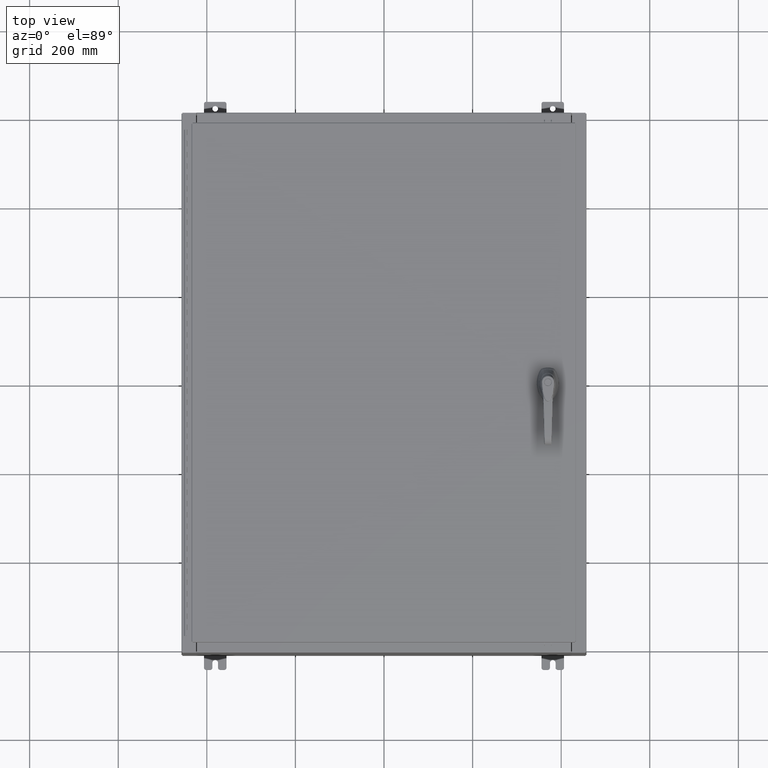
[diagram: clean part render]
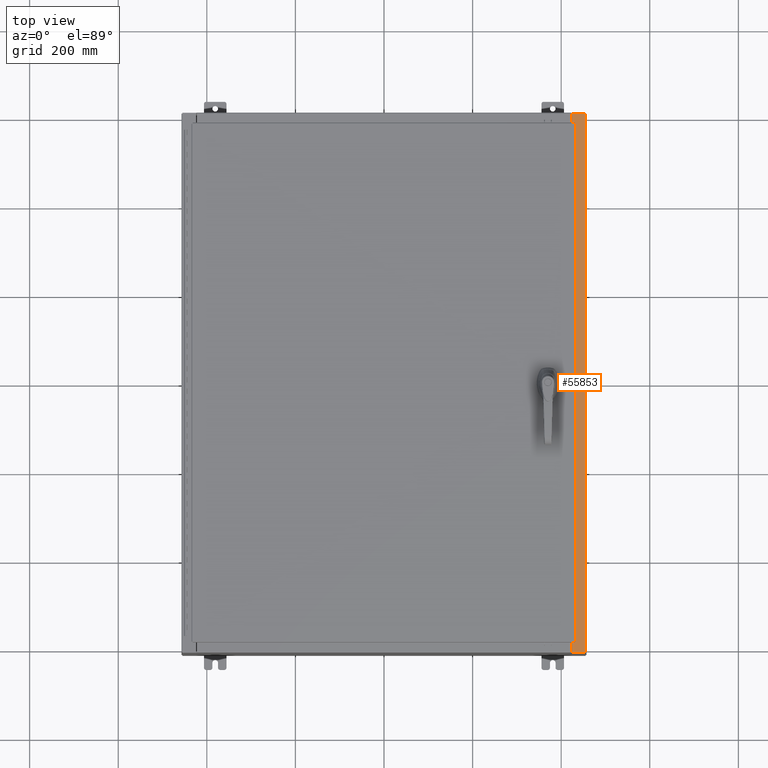
[diagram: same view with one face highlighted and labeled with its STEP entity id]
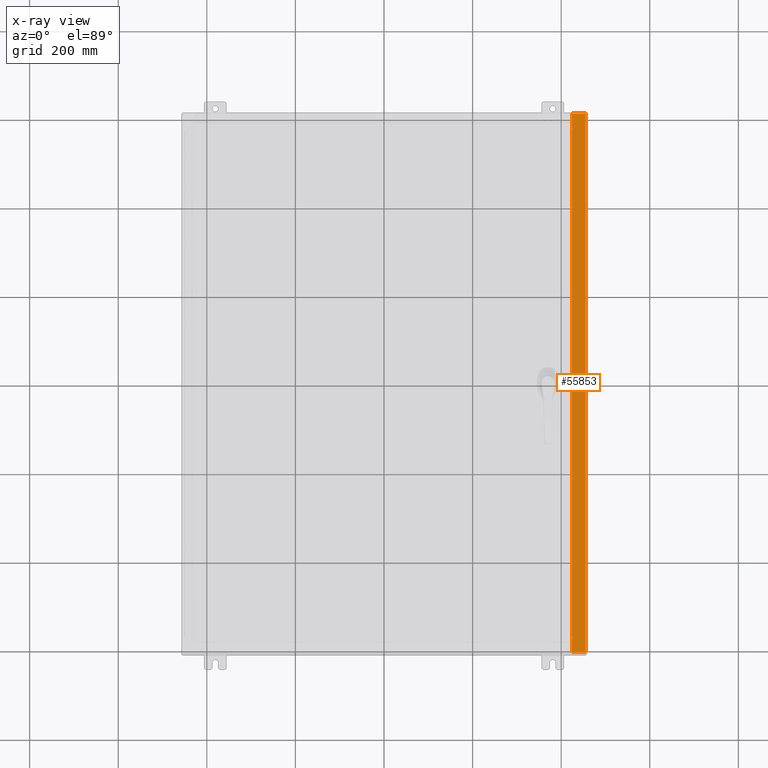
[diagram: x-ray of the same camera — body ghosted, the highlighted face saturated]
A machine part, top view. The second image highlights one B-rep face of the part: STEP entity #55853.
The next image is the same camera in x-ray: the body ghosted, the highlighted face saturated — about 0% of this face is hidden behind the body in this view.
In plain terms, the highlighted planar face has unit normal (-0, 0, -1).
Its self-contained STEP definition (entity closure, byte-faithful):
#2080 = VERTEX_POINT ( 'NONE', #127834 ) ;
#2927 = CARTESIAN_POINT ( 'NONE',  ( 16.71270000000005100, -22.59374999999998900, 15.92530000000000900 ) ) ;
#6597 = DIRECTION ( 'NONE',  ( -7.132762385546384700E-015, 0.0000000000000000000, -1.000000000000000000 ) ) ;
#7098 = ORIENTED_EDGE ( 'NONE', *, *, #40957, .F. ) ;
#7381 = VECTOR ( 'NONE', #115423, 39.37007874015748100 ) ;
#7962 = CARTESIAN_POINT ( 'NONE',  ( 16.71270000000005100, 22.59374999999997200, 15.92530000000000900 ) ) ;
#9690 = FACE_OUTER_BOUND ( 'NONE', #44326, .T. ) ;
#9836 = LINE ( 'NONE', #34510, #115670 ) ;
#10373 = AXIS2_PLACEMENT_3D ( 'NONE', #79350, #17940, #89675 ) ;
#10970 = ORIENTED_EDGE ( 'NONE', *, *, #29927, .F. ) ;
#11438 = EDGE_CURVE ( 'NONE', #120298, #39729, #105476, .T. ) ;
#11815 = CARTESIAN_POINT ( 'NONE',  ( 17.91230000000005200, -23.92529999999998900, 15.92530000000000000 ) ) ;
#12558 = CARTESIAN_POINT ( 'NONE',  ( 16.69970000000005000, 23.92529999999998200, 15.92530000000000500 ) ) ;
#13333 = VECTOR ( 'NONE', #24407, 39.37007874015748100 ) ;
#13379 = EDGE_CURVE ( 'NONE', #25020, #120432, #61890, .T. ) ;
#13850 = ORIENTED_EDGE ( 'NONE', *, *, #21522, .T. ) ;
#16230 = CARTESIAN_POINT ( 'NONE',  ( 16.75005000000005100, -22.59374999999998900, 15.92530000000000900 ) ) ;
#17940 = DIRECTION ( 'NONE',  ( 7.132762385546384700E-015, 0.0000000000000000000, 1.000000000000000000 ) ) ;
#18461 = CIRCLE ( 'NONE', #10373, 0.01867499999999949400 ) ;
#21522 = EDGE_CURVE ( 'NONE', #90543, #92232, #123317, .T. ) ;
#23652 = VECTOR ( 'NONE', #68714, 39.37007874015748100 ) ;
#24407 = DIRECTION ( 'NONE',  ( -1.000000000000000000, 4.379057701015053300E-047, 7.132762385546384700E-015 ) ) ;
#25020 = VERTEX_POINT ( 'NONE', #56992 ) ;
#25270 = CARTESIAN_POINT ( 'NONE',  ( 16.75005000000005100, 22.61242499999997000, 15.92530000000000900 ) ) ;
#27770 = LINE ( 'NONE', #55078, #51811 ) ;
#29927 = EDGE_CURVE ( 'NONE', #75266, #58102, #32844, .T. ) ;
#32844 = LINE ( 'NONE', #107989, #111509 ) ;
#32871 = DIRECTION ( 'NONE',  ( 3.161623214578966600E-031, -1.000000000000000000, -2.255110714221909800E-045 ) ) ;
#34064 = AXIS2_PLACEMENT_3D ( 'NONE', #25270, #96984, #35571 ) ;
#34283 = CARTESIAN_POINT ( 'NONE',  ( 1.138521944745543500E-013, 23.92529999999998600, 15.92530000000012600 ) ) ;
#34510 = CARTESIAN_POINT ( 'NONE',  ( 1.138521944745543500E-013, -23.92529999999998900, 15.92530000000012600 ) ) ;
#35571 = DIRECTION ( 'NONE',  ( 1.000000000000000000, 0.0000000000000000000, 0.0000000000000000000 ) ) ;
#37456 = VECTOR ( 'NONE', #100714, 39.37007874015748100 ) ;
#38259 = CARTESIAN_POINT ( 'NONE',  ( 16.75005000000005100, -22.63109999999998600, 15.92530000000000500 ) ) ;
#39729 = VERTEX_POINT ( 'NONE', #104016 ) ;
#39997 = ORIENTED_EDGE ( 'NONE', *, *, #11438, .T. ) ;
#40957 = EDGE_CURVE ( 'NONE', #85676, #92232, #27770, .T. ) ;
#41274 = CARTESIAN_POINT ( 'NONE',  ( 16.75005000000005100, 22.63109999999996800, 15.92530000000000500 ) ) ;
#42080 = VECTOR ( 'NONE', #131850, 39.37007874015748100 ) ;
#43814 = LINE ( 'NONE', #34283, #13333 ) ;
#44326 = EDGE_LOOP ( 'NONE', ( #132021, #39997, #125844, #10970, #89820, #13850, #7098, #112703, #63798, #122097, #75953, #90797 ) ) ;
#44381 = EDGE_CURVE ( 'NONE', #120432, #65592, #72566, .T. ) ;
#44691 = VECTOR ( 'NONE', #32871, 39.37007874015748100 ) ;
#51811 = VECTOR ( 'NONE', #86027, 39.37007874015748100 ) ;
#53015 = EDGE_CURVE ( 'NONE', #121102, #2080, #18461, .T. ) ;
#53328 = CARTESIAN_POINT ( 'NONE',  ( 17.91230000000005200, 23.92529999999998600, 15.92530000000000000 ) ) ;
#54267 = VECTOR ( 'NONE', #118859, 39.37007874015748100 ) ;
#55078 = CARTESIAN_POINT ( 'NONE',  ( 16.75005000000005100, 22.63109999999996800, 15.92530000000000900 ) ) ;
#55853 = ADVANCED_FACE ( 'NONE', ( #9690 ), #57625, .F. ) ;
#56992 = CARTESIAN_POINT ( 'NONE',  ( 16.71270000000005100, -22.59374999999998900, 15.92530000000000900 ) ) ;
#57625 = PLANE ( 'NONE',  #81817 ) ;
#58102 = VERTEX_POINT ( 'NONE', #11815 ) ;
#58380 = CARTESIAN_POINT ( 'NONE',  ( 16.69970000000005000, 5.279815919650416800E-030, 15.92530000000000500 ) ) ;
#61890 = LINE ( 'NONE', #2927, #7381 ) ;
#62515 = EDGE_CURVE ( 'NONE', #120298, #121102, #122513, .T. ) ;
#63798 = ORIENTED_EDGE ( 'NONE', *, *, #44381, .F. ) ;
#65592 = VERTEX_POINT ( 'NONE', #96251 ) ;
#68714 = DIRECTION ( 'NONE',  ( 3.161623214578966600E-031, -1.000000000000000000, -2.255110714221909800E-045 ) ) ;
#70444 = CARTESIAN_POINT ( 'NONE',  ( 16.71270000000005100, 22.59374999999997200, 15.92530000000000900 ) ) ;
#72566 = LINE ( 'NONE', #70444, #42080 ) ;
#74715 = EDGE_CURVE ( 'NONE', #39729, #58102, #9836, .T. ) ;
#75266 = VERTEX_POINT ( 'NONE', #53328 ) ;
#75953 = ORIENTED_EDGE ( 'NONE', *, *, #88556, .F. ) ;
#76995 = CARTESIAN_POINT ( 'NONE',  ( 16.69970000000005000, -22.63109999999998600, 15.92530000000000500 ) ) ;
#78278 = DIRECTION ( 'NONE',  ( -1.000000000000000000, 0.0000000000000000000, 7.132762385546384700E-015 ) ) ;
#79350 = CARTESIAN_POINT ( 'NONE',  ( 16.75005000000005100, -22.61242499999998800, 15.92530000000000900 ) ) ;
#81817 = AXIS2_PLACEMENT_3D ( 'NONE', #97538, #6597, #78278 ) ;
#85676 = VERTEX_POINT ( 'NONE', #41274 ) ;
#86027 = DIRECTION ( 'NONE',  ( -1.000000000000000000, 0.0000000000000000000, -4.340572780400098900E-014 ) ) ;
#88556 = EDGE_CURVE ( 'NONE', #2080, #25020, #105643, .T. ) ;
#89675 = DIRECTION ( 'NONE',  ( 1.000000000000000000, 0.0000000000000000000, 0.0000000000000000000 ) ) ;
#89820 = ORIENTED_EDGE ( 'NONE', *, *, #93163, .T. ) ;
#90543 = VERTEX_POINT ( 'NONE', #12558 ) ;
#90797 = ORIENTED_EDGE ( 'NONE', *, *, #53015, .F. ) ;
#92232 = VERTEX_POINT ( 'NONE', #112749 ) ;
#93163 = EDGE_CURVE ( 'NONE', #75266, #90543, #43814, .T. ) ;
#94275 = CARTESIAN_POINT ( 'NONE',  ( 16.69970000000005000, 5.279815919650416800E-030, 15.92530000000000500 ) ) ;
#96251 = CARTESIAN_POINT ( 'NONE',  ( 16.75005000000005100, 22.59374999999997200, 15.92530000000000500 ) ) ;
#96984 = DIRECTION ( 'NONE',  ( 7.132762385546384700E-015, 0.0000000000000000000, 1.000000000000000000 ) ) ;
#97306 = EDGE_CURVE ( 'NONE', #65592, #85676, #97705, .T. ) ;
#97538 = CARTESIAN_POINT ( 'NONE',  ( 1.138521944745543500E-013, 0.0000000000000000000, 15.92530000000012600 ) ) ;
#97705 = CIRCLE ( 'NONE', #34064, 0.01867499999999949400 ) ;
#100714 = DIRECTION ( 'NONE',  ( 1.000000000000000000, 0.0000000000000000000, 4.340572780400098900E-014 ) ) ;
#104016 = CARTESIAN_POINT ( 'NONE',  ( 16.69970000000005000, -23.92529999999998900, 15.92530000000000500 ) ) ;
#105476 = LINE ( 'NONE', #58380, #23652 ) ;
#105643 = LINE ( 'NONE', #16230, #54267 ) ;
#107989 = CARTESIAN_POINT ( 'NONE',  ( 17.91230000000005200, -23.92529999999998900, 15.92530000000000000 ) ) ;
#111069 = CARTESIAN_POINT ( 'NONE',  ( 16.69970000000005000, -22.63109999999998600, 15.92530000000000500 ) ) ;
#111509 = VECTOR ( 'NONE', #118287, 39.37007874015748100 ) ;
#112703 = ORIENTED_EDGE ( 'NONE', *, *, #97306, .F. ) ;
#112749 = CARTESIAN_POINT ( 'NONE',  ( 16.69970000000005000, 22.63109999999996800, 15.92530000000000500 ) ) ;
#115423 = DIRECTION ( 'NONE',  ( -0.0000000000000000000, 1.000000000000000000, -0.0000000000000000000 ) ) ;
#115670 = VECTOR ( 'NONE', #126875, 39.37007874015748100 ) ;
#118287 = DIRECTION ( 'NONE',  ( -0.0000000000000000000, -1.000000000000000000, -0.0000000000000000000 ) ) ;
#118859 = DIRECTION ( 'NONE',  ( -1.000000000000000000, 0.0000000000000000000, 0.0000000000000000000 ) ) ;
#120298 = VERTEX_POINT ( 'NONE', #76995 ) ;
#120432 = VERTEX_POINT ( 'NONE', #7962 ) ;
#121102 = VERTEX_POINT ( 'NONE', #38259 ) ;
#122097 = ORIENTED_EDGE ( 'NONE', *, *, #13379, .F. ) ;
#122513 = LINE ( 'NONE', #111069, #37456 ) ;
#123317 = LINE ( 'NONE', #94275, #44691 ) ;
#125844 = ORIENTED_EDGE ( 'NONE', *, *, #74715, .T. ) ;
#126875 = DIRECTION ( 'NONE',  ( 1.000000000000000000, 8.144358738339254500E-032, -7.132762385546384700E-015 ) ) ;
#127834 = CARTESIAN_POINT ( 'NONE',  ( 16.75005000000005100, -22.59374999999998900, 15.92530000000000500 ) ) ;
#131850 = DIRECTION ( 'NONE',  ( 1.000000000000000000, 0.0000000000000000000, 0.0000000000000000000 ) ) ;
#132021 = ORIENTED_EDGE ( 'NONE', *, *, #62515, .F. ) ;